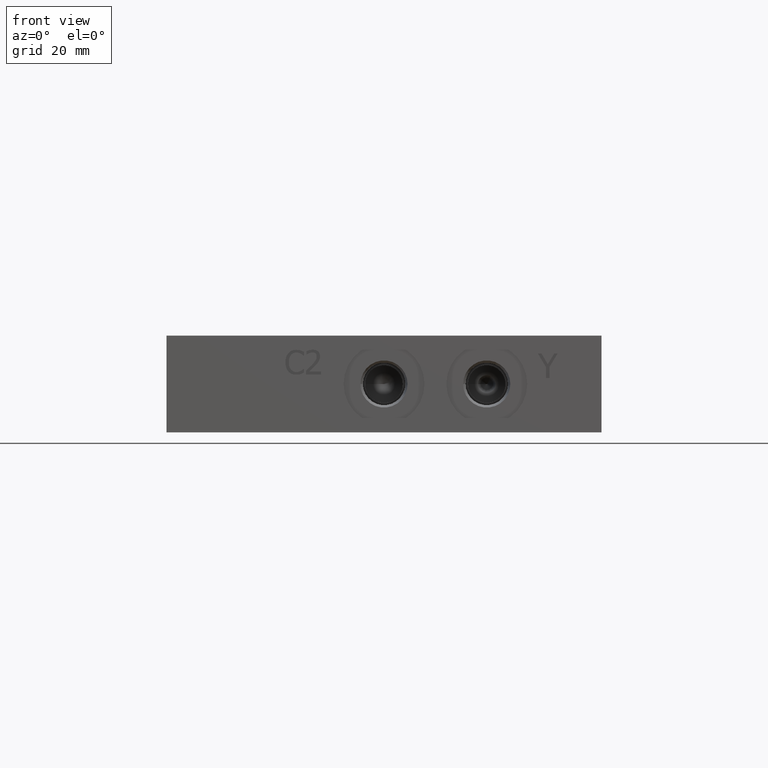
[diagram: clean part render]
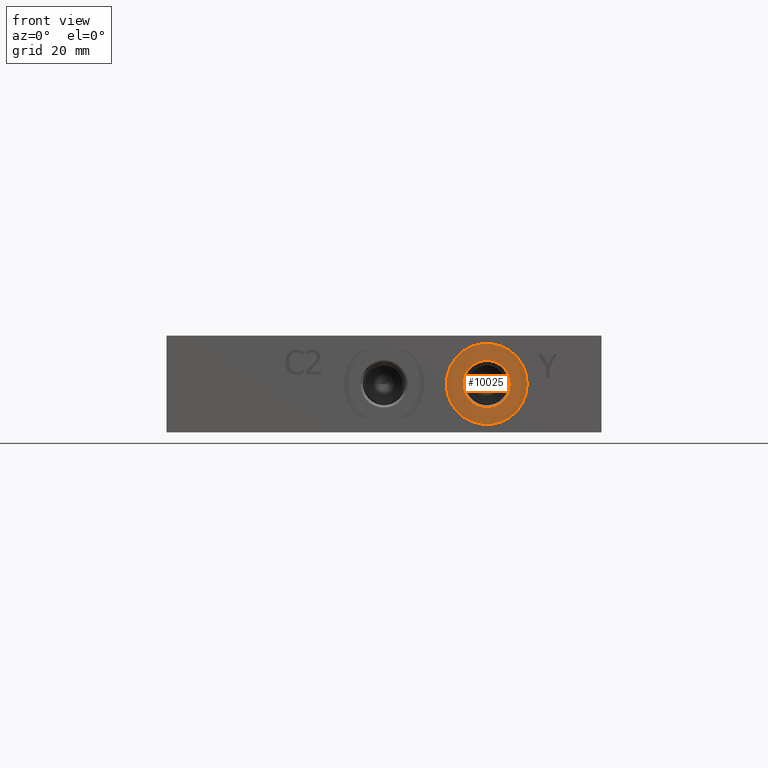
[diagram: same view with one face highlighted and labeled with its STEP entity id]
A machine part, front view. The second image highlights one B-rep face of the part: STEP entity #10025.
In plain terms, the highlighted planar face has unit normal (0, -1, 0).
Its self-contained STEP definition (entity closure, byte-faithful):
#77=CIRCLE('',#10448,10.6426);
#78=CIRCLE('',#10449,10.6426);
#79=CIRCLE('',#10450,6.1976);
#341=FACE_BOUND('',#1681,.T.);
#1141=FACE_OUTER_BOUND('',#1680,.T.);
#1680=EDGE_LOOP('',(#8258,#8259));
#1681=EDGE_LOOP('',(#8260));
#4513=VERTEX_POINT('',#16670);
#4514=VERTEX_POINT('',#16671);
#4515=VERTEX_POINT('',#16674);
#5844=EDGE_CURVE('',#4513,#4514,#77,.T.);
#5845=EDGE_CURVE('',#4514,#4513,#78,.T.);
#5846=EDGE_CURVE('',#4515,#4515,#79,.T.);
#8258=ORIENTED_EDGE('',*,*,#5844,.T.);
#8259=ORIENTED_EDGE('',*,*,#5845,.T.);
#8260=ORIENTED_EDGE('',*,*,#5846,.F.);
#9214=PLANE('',#10447);
#10025=ADVANCED_FACE('',(#1141,#341),#9214,.T.);
#10447=AXIS2_PLACEMENT_3D('',#16669,#12220,#12221);
#10448=AXIS2_PLACEMENT_3D('',#16672,#12222,#12223);
#10449=AXIS2_PLACEMENT_3D('',#16673,#12224,#12225);
#10450=AXIS2_PLACEMENT_3D('',#16675,#12226,#12227);
#12220=DIRECTION('center_axis',(0.,-1.,0.));
#12221=DIRECTION('ref_axis',(1.,0.,0.));
#12222=DIRECTION('center_axis',(0.,-1.,0.));
#12223=DIRECTION('ref_axis',(1.,0.,0.));
#12224=DIRECTION('center_axis',(0.,-1.,0.));
#12225=DIRECTION('ref_axis',(1.,0.,0.));
#12226=DIRECTION('center_axis',(0.,-1.,0.));
#12227=DIRECTION('ref_axis',(1.,0.,0.));
#16669=CARTESIAN_POINT('Origin',(84.1502,0.7874,12.7));
#16670=CARTESIAN_POINT('',(94.7928,0.7874,12.7));
#16671=CARTESIAN_POINT('',(73.5076,0.7874,12.7));
#16672=CARTESIAN_POINT('Origin',(84.1502,0.7874,12.7));
#16673=CARTESIAN_POINT('Origin',(84.1502,0.7874,12.7));
#16674=CARTESIAN_POINT('',(77.9526,0.7874,12.7));
#16675=CARTESIAN_POINT('Origin',(84.1502,0.7874,12.7));